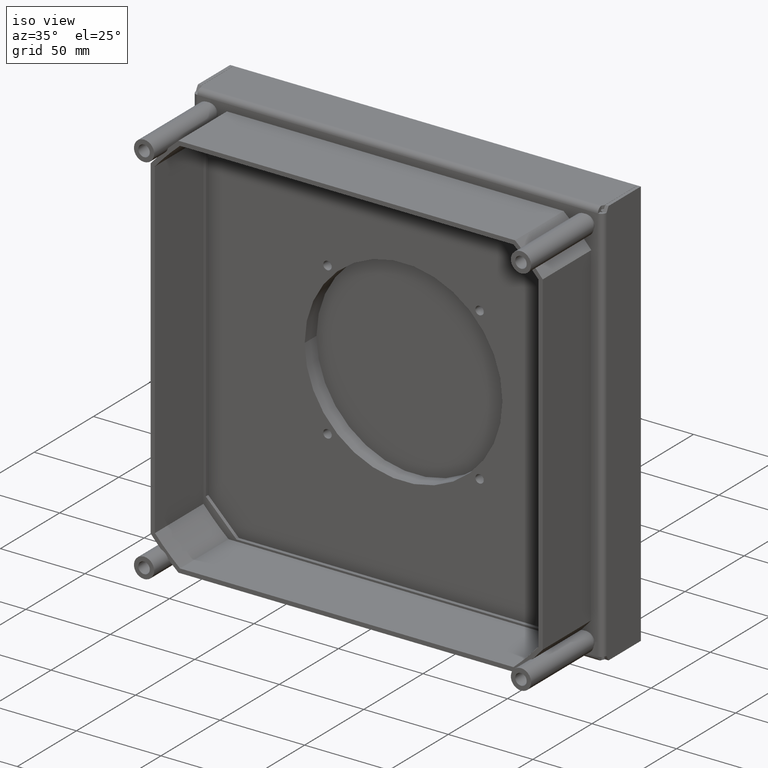
[diagram: clean part render]
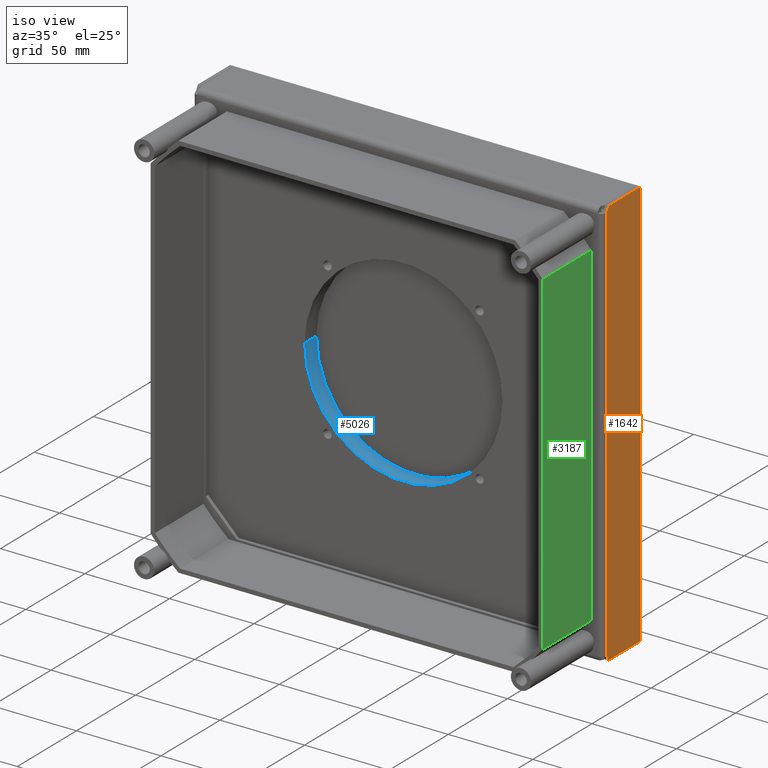
[diagram: same view with three faces highlighted in distinct colors, each labeled with its STEP entity id]
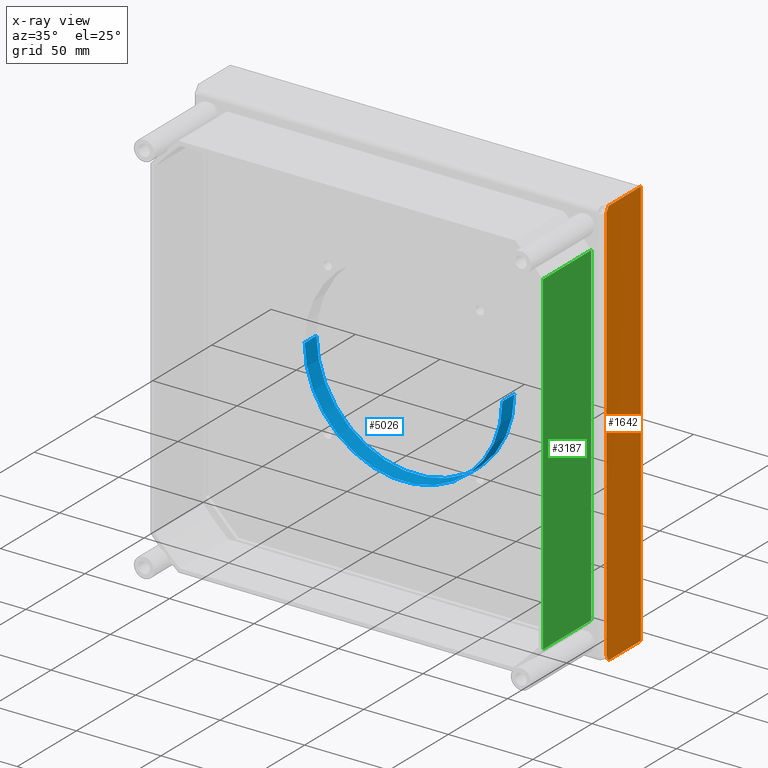
[diagram: x-ray of the same camera — body ghosted, the three highlighted faces saturated]
A machine part, iso view with three faces highlighted in distinct colors.
The next image is the same camera in x-ray (body ghosted, the three faces saturated) — at least one of them is partly hidden behind the body in this view.
Their STEP definitions:

[orange] entity #1642 — the highlighted planar face has unit normal (-1, 0, 0).
#659=DIRECTION('',(0.E0,0.E0,1.E0));
#660=VECTOR('',#659,2.37E2);
#661=CARTESIAN_POINT('',(1.215E2,3.E0,-1.185E2));
#662=LINE('',#661,#660);
#689=DIRECTION('',(0.E0,-1.E0,0.E0));
#690=VECTOR('',#689,2.726794919243E1);
#691=CARTESIAN_POINT('',(1.215E2,3.2E1,-1.215E2));
#692=LINE('',#691,#690);
#696=DIRECTION('',(0.E0,-5.E-1,8.660254037844E-1));
#697=VECTOR('',#696,3.464101615138E0);
#698=CARTESIAN_POINT('',(1.215E2,4.732050807569E0,-1.215E2));
#699=LINE('',#698,#697);
#703=DIRECTION('',(0.E0,-5.E-1,-8.660254037844E-1));
#704=VECTOR('',#703,3.464101615138E0);
#705=CARTESIAN_POINT('',(1.215E2,4.732050807569E0,1.215E2));
#706=LINE('',#705,#704);
#710=DIRECTION('',(0.E0,-1.E0,0.E0));
#711=VECTOR('',#710,2.726794919243E1);
#712=CARTESIAN_POINT('',(1.215E2,3.2E1,1.215E2));
#713=LINE('',#712,#711);
#731=DIRECTION('',(0.E0,0.E0,-1.E0));
#732=VECTOR('',#731,2.43E2);
#733=CARTESIAN_POINT('',(1.215E2,3.2E1,1.215E2));
#734=LINE('',#733,#732);
#1189=CARTESIAN_POINT('',(1.215E2,3.2E1,-1.215E2));
#1190=CARTESIAN_POINT('',(1.215E2,4.732050807569E0,-1.215E2));
#1191=VERTEX_POINT('',#1189);
#1192=VERTEX_POINT('',#1190);
#1193=CARTESIAN_POINT('',(1.215E2,3.E0,-1.185E2));
#1194=VERTEX_POINT('',#1193);
#1217=CARTESIAN_POINT('',(1.215E2,3.2E1,1.215E2));
#1218=CARTESIAN_POINT('',(1.215E2,4.732050807569E0,1.215E2));
#1219=VERTEX_POINT('',#1217);
#1220=VERTEX_POINT('',#1218);
#1221=CARTESIAN_POINT('',(1.215E2,3.E0,1.185E2));
#1222=VERTEX_POINT('',#1221);
#1624=CARTESIAN_POINT('',(1.215E2,0.E0,-9.26316E1));
#1625=DIRECTION('',(-1.E0,0.E0,0.E0));
#1626=DIRECTION('',(0.E0,0.E0,1.E0));
#1627=AXIS2_PLACEMENT_3D('',#1624,#1625,#1626);
#1628=PLANE('',#1627);
#1630=ORIENTED_EDGE('',*,*,#1629,.T.);
#1632=ORIENTED_EDGE('',*,*,#1631,.T.);
#1634=ORIENTED_EDGE('',*,*,#1633,.T.);
#1635=ORIENTED_EDGE('',*,*,#1615,.T.);
#1637=ORIENTED_EDGE('',*,*,#1636,.F.);
#1639=ORIENTED_EDGE('',*,*,#1638,.F.);
#1640=EDGE_LOOP('',(#1630,#1632,#1634,#1635,#1637,#1639));
#1641=FACE_OUTER_BOUND('',#1640,.F.);
#1615=EDGE_CURVE('',#1194,#1222,#662,.T.);
#1629=EDGE_CURVE('',#1219,#1191,#734,.T.);
#1631=EDGE_CURVE('',#1191,#1192,#692,.T.);
#1633=EDGE_CURVE('',#1192,#1194,#699,.T.);
#1636=EDGE_CURVE('',#1220,#1222,#706,.T.);
#1638=EDGE_CURVE('',#1219,#1220,#713,.T.);
#1642=ADVANCED_FACE('',(#1641),#1628,.F.);

[blue] entity #5026 — the highlighted cylindrical surface (partial cylindrical patch) has radius 58.5 mm, axis along (0, -1, 0).
#4642=CARTESIAN_POINT('',(0.E0,0.E0,0.E0));
#4643=DIRECTION('',(0.E0,-1.E0,0.E0));
#4644=DIRECTION('',(1.E0,0.E0,0.E0));
#4645=AXIS2_PLACEMENT_3D('',#4642,#4643,#4644);
#4728=DIRECTION('',(0.E0,1.E0,0.E0));
#4729=VECTOR('',#4728,1.E1);
#4730=CARTESIAN_POINT('',(5.85E1,0.E0,0.E0));
#4731=LINE('',#4730,#4729);
#4732=DIRECTION('',(0.E0,1.E0,0.E0));
#4733=VECTOR('',#4732,1.E1);
#4734=CARTESIAN_POINT('',(-5.85E1,0.E0,0.E0));
#4735=LINE('',#4734,#4733);
#4736=CARTESIAN_POINT('',(0.E0,1.E1,0.E0));
#4737=DIRECTION('',(0.E0,-1.E0,0.E0));
#4738=DIRECTION('',(1.E0,0.E0,0.E0));
#4739=AXIS2_PLACEMENT_3D('',#4736,#4737,#4738);
#4886=CARTESIAN_POINT('',(5.85E1,0.E0,0.E0));
#4887=CARTESIAN_POINT('',(-5.85E1,0.E0,0.E0));
#4888=VERTEX_POINT('',#4886);
#4889=VERTEX_POINT('',#4887);
#4922=CARTESIAN_POINT('',(5.85E1,1.E1,0.E0));
#4923=CARTESIAN_POINT('',(-5.85E1,1.E1,0.E0));
#4924=VERTEX_POINT('',#4922);
#4925=VERTEX_POINT('',#4923);
#5012=CARTESIAN_POINT('',(0.E0,0.E0,0.E0));
#5013=DIRECTION('',(0.E0,1.E0,0.E0));
#5014=DIRECTION('',(1.E0,0.E0,0.E0));
#5015=AXIS2_PLACEMENT_3D('',#5012,#5013,#5014);
#5016=CYLINDRICAL_SURFACE('',#5015,5.85E1);
#5017=ORIENTED_EDGE('',*,*,#5005,.F.);
#5019=ORIENTED_EDGE('',*,*,#5018,.T.);
#5021=ORIENTED_EDGE('',*,*,#5020,.T.);
#5023=ORIENTED_EDGE('',*,*,#5022,.F.);
#5024=EDGE_LOOP('',(#5017,#5019,#5021,#5023));
#5025=FACE_OUTER_BOUND('',#5024,.F.);
#4646=CIRCLE('',#4645,5.85E1);
#4740=CIRCLE('',#4739,5.85E1);
#5005=EDGE_CURVE('',#4888,#4889,#4646,.T.);
#5018=EDGE_CURVE('',#4888,#4924,#4731,.T.);
#5020=EDGE_CURVE('',#4924,#4925,#4740,.T.);
#5022=EDGE_CURVE('',#4889,#4925,#4735,.T.);
#5026=ADVANCED_FACE('',(#5025),#5016,.F.);

[green] entity #3187 — the highlighted planar face has unit normal (1, 0, 0).
#2838=DIRECTION('',(0.E0,0.E0,-1.E0));
#2839=VECTOR('',#2838,1.979924240975E2);
#2840=CARTESIAN_POINT('',(1.16E2,0.E0,9.899621204874E1));
#2841=LINE('',#2840,#2839);
#2842=DIRECTION('',(0.E0,-1.E0,0.E0));
#2843=VECTOR('',#2842,4.1E1);
#2844=CARTESIAN_POINT('',(1.16E2,0.E0,-9.899621204874E1));
#2845=LINE('',#2844,#2843);
#2846=DIRECTION('',(0.E0,0.E0,1.E0));
#2847=VECTOR('',#2846,1.979924240975E2);
#2848=CARTESIAN_POINT('',(1.16E2,-4.1E1,-9.899621204874E1));
#2849=LINE('',#2848,#2847);
#2850=DIRECTION('',(0.E0,-1.E0,0.E0));
#2851=VECTOR('',#2850,4.1E1);
#2852=CARTESIAN_POINT('',(1.16E2,0.E0,9.899621204874E1));
#2853=LINE('',#2852,#2851);
#2927=CARTESIAN_POINT('',(1.16E2,0.E0,9.899621204874E1));
#2929=VERTEX_POINT('',#2927);
#2933=CARTESIAN_POINT('',(1.16E2,-4.1E1,9.899621204874E1));
#2935=VERTEX_POINT('',#2933);
#2937=CARTESIAN_POINT('',(1.16E2,0.E0,-9.899621204874E1));
#2939=VERTEX_POINT('',#2937);
#2943=CARTESIAN_POINT('',(1.16E2,-4.1E1,-9.899621204874E1));
#2945=VERTEX_POINT('',#2943);
#3175=CARTESIAN_POINT('',(1.16E2,0.E0,9.899621204874E1));
#3176=DIRECTION('',(1.E0,0.E0,0.E0));
#3177=DIRECTION('',(0.E0,0.E0,-1.E0));
#3178=AXIS2_PLACEMENT_3D('',#3175,#3176,#3177);
#3179=PLANE('',#3178);
#3180=ORIENTED_EDGE('',*,*,#2955,.T.);
#3182=ORIENTED_EDGE('',*,*,#3181,.T.);
#3183=ORIENTED_EDGE('',*,*,#3012,.T.);
#3184=ORIENTED_EDGE('',*,*,#3168,.F.);
#3185=EDGE_LOOP('',(#3180,#3182,#3183,#3184));
#3186=FACE_OUTER_BOUND('',#3185,.F.);
#2955=EDGE_CURVE('',#2929,#2939,#2841,.T.);
#3012=EDGE_CURVE('',#2945,#2935,#2849,.T.);
#3168=EDGE_CURVE('',#2929,#2935,#2853,.T.);
#3181=EDGE_CURVE('',#2939,#2945,#2845,.T.);
#3187=ADVANCED_FACE('',(#3186),#3179,.T.);